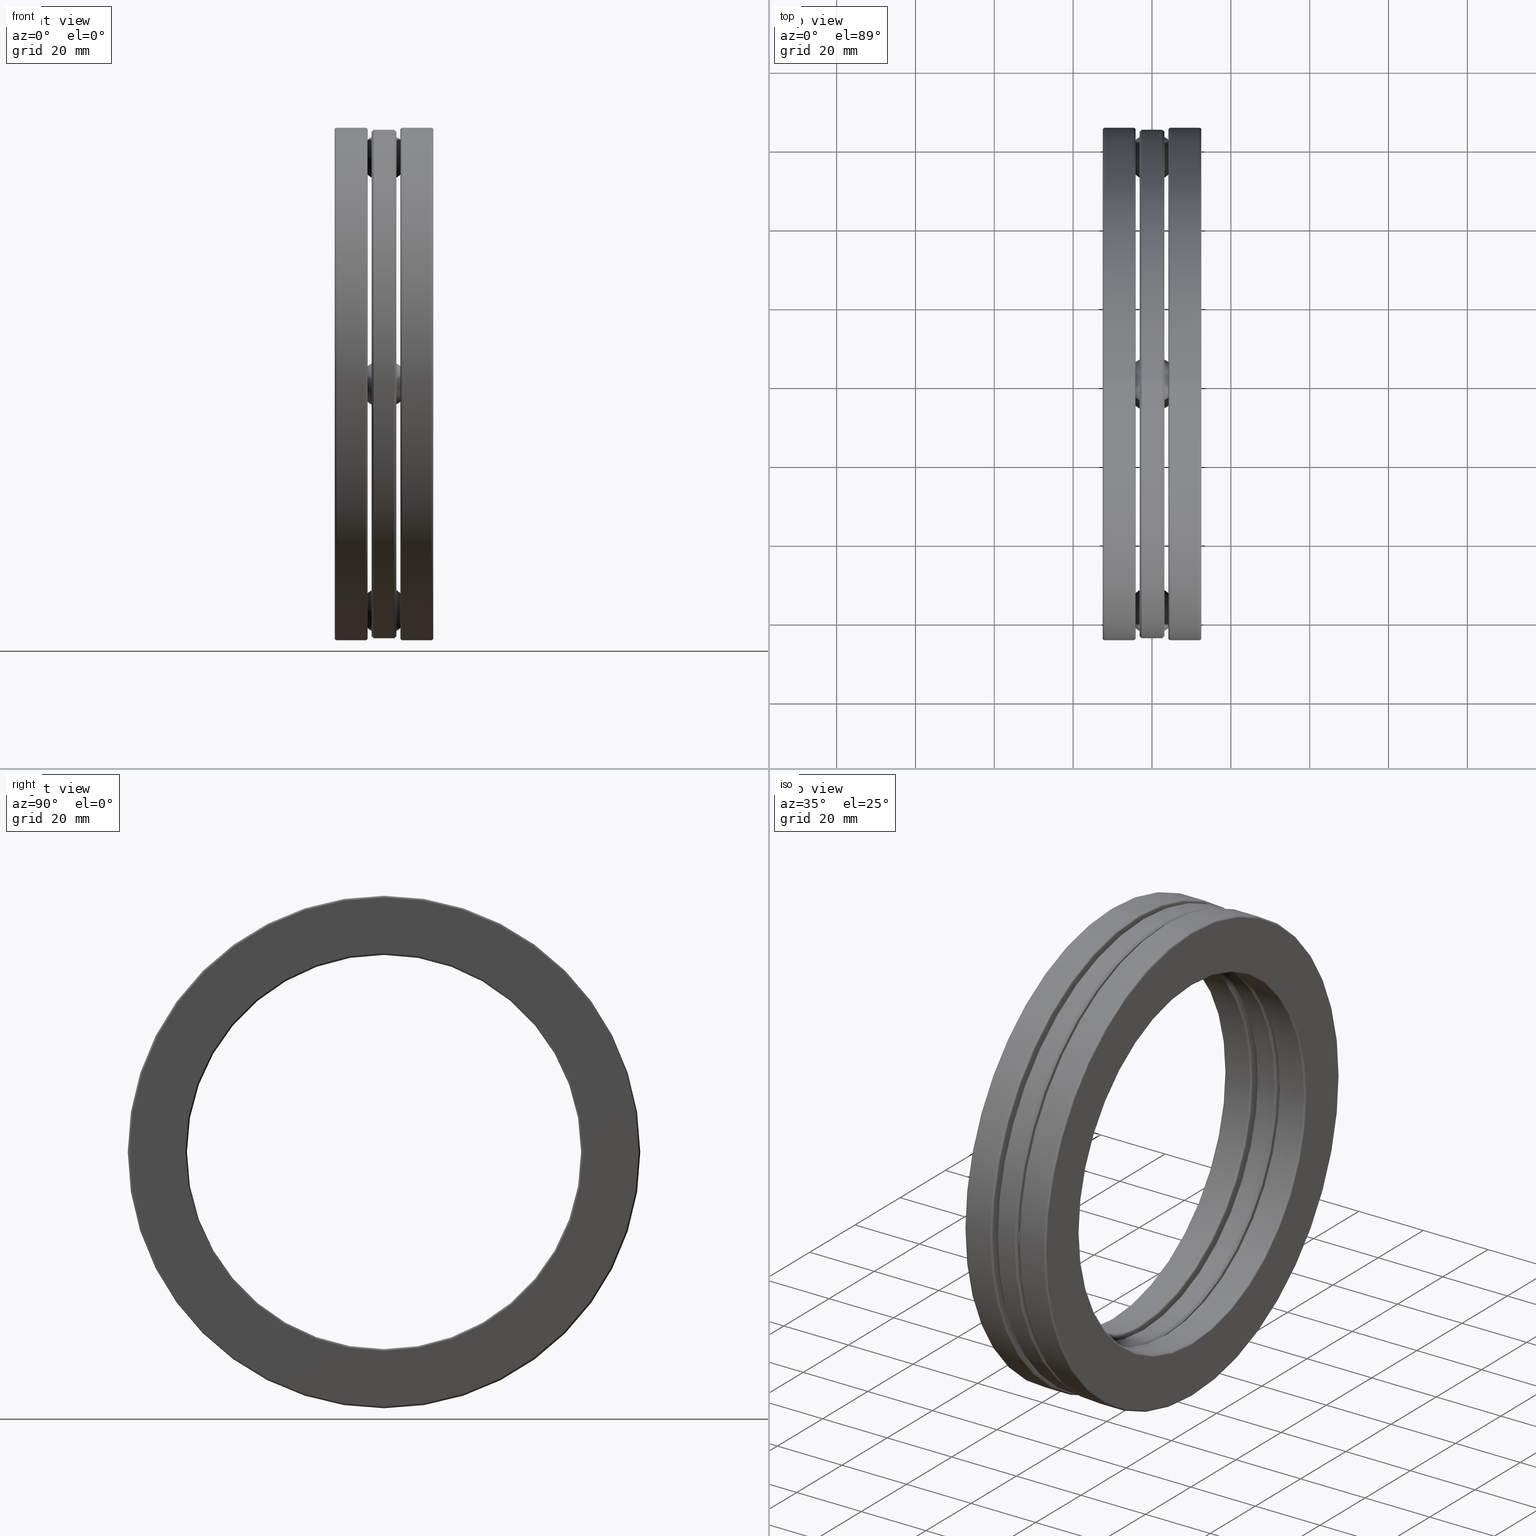
[diagram: canonical four-view strip — front | top / right | iso, engineering-drawing reading convention]
A machine part, canonical four-view strip (front | top / right | iso — engineering-drawing reading convention). The complete STEP part file that produces these views, byte-faithful:
ISO-10303-21;
HEADER;
FILE_DESCRIPTION (( 'STEP AP203' ),
    '1' );
FILE_NAME ('2919-ABB.step',
    '2017-03-07T16:43:12',
    ( '' ),
    ( '' ),
    'SwSTEP 2.0',
    'SolidWorks 2017',
    '' );
FILE_SCHEMA (( 'CONFIG_CONTROL_DESIGN' ));
ENDSEC;

DATA;
#1 = APPLICATION_CONTEXT ( 'configuration controlled 3d designs of mechanical parts and assemblies' ) ;
#2 = CIRCLE ( 'NONE', #18, 0.2470000000000005000 ) ;
#3 = AXIS2_PLACEMENT_3D ( 'NONE', #517, #147, #585 ) ;
#4 =( CONVERSION_BASED_UNIT ( 'INCH', #287 ) LENGTH_UNIT ( ) NAMED_UNIT ( #717 ) );
#5 = ORIENTED_EDGE ( 'NONE', *, *, #406, .F. ) ;
#6 = CARTESIAN_POINT ( 'NONE',  ( -0.1229999999999999600, 2.263749999999999900, -0.2470000000000005000 ) ) ;
#7 = CARTESIAN_POINT ( 'NONE',  ( -0.4719999999999999200, 0.0000000000000000000, 0.0000000000000000000 ) ) ;
#8 = ORIENTED_EDGE ( 'NONE', *, *, #510, .F. ) ;
#9 = ORIENTED_EDGE ( 'NONE', *, *, #482, .T. ) ;
#10 = CC_DESIGN_SECURITY_CLASSIFICATION ( #518, ( #497 ) ) ;
#11 = VERTEX_POINT ( 'NONE', #318 ) ;
#12 = FACE_BOUND ( 'NONE', #197, .T. ) ;
#13 = EDGE_CURVE ( 'NONE', #757, #757, #599, .T. ) ;
#14 = CARTESIAN_POINT ( 'NONE',  ( -0.1840032799999997400, 0.0000000000000000000, 0.0000000000000000000 ) ) ;
#15 = CYLINDRICAL_SURFACE ( 'NONE', #573, 0.2470000000000005000 ) ;
#16 = ORIENTED_EDGE ( 'NONE', *, *, #751, .F. ) ;
#17 = EDGE_LOOP ( 'NONE', ( #686 ) ) ;
#18 = AXIS2_PLACEMENT_3D ( 'NONE', #507, #263, #175 ) ;
#19 = DIRECTION ( 'NONE',  ( 0.0000000000000000000, 0.0000000000000000000, 1.000000000000000000 ) ) ;
#20 = CARTESIAN_POINT ( 'NONE',  ( 0.4720000000000009200, 0.0000000000000000000, 0.0000000000000000000 ) ) ;
#21 = PERSON_AND_ORGANIZATION ( #528, #74 ) ;
#22 = ADVANCED_FACE ( 'NONE', ( #503, #128 ), #781, .T. ) ;
#23 = FACE_OUTER_BOUND ( 'NONE', #567, .T. ) ;
#24 = EDGE_CURVE ( 'NONE', #416, #416, #763, .T. ) ;
#25 = ADVANCED_FACE ( 'NONE', ( #49, #270 ), #439, .F. ) ;
#26 = CARTESIAN_POINT ( 'NONE',  ( 0.1230000000000000000, 2.263749999999999900, 0.0000000000000000000 ) ) ;
#27 = EDGE_LOOP ( 'NONE', ( #594 ) ) ;
#28 = DIRECTION ( 'NONE',  ( 0.0000000000000000000, 0.0000000000000000000, 1.000000000000000000 ) ) ;
#29 = ORIENTED_EDGE ( 'NONE', *, *, #558, .F. ) ;
#30 = ORIENTED_EDGE ( 'NONE', *, *, #418, .F. ) ;
#31 = CARTESIAN_POINT ( 'NONE',  ( -0.4920393700787400500, 2.263749999999999900, 0.0000000000000000000 ) ) ;
#32 = VERTEX_POINT ( 'NONE', #313 ) ;
#33 = DIRECTION ( 'NONE',  ( 0.0000000000000000000, 0.0000000000000000000, -1.000000000000000000 ) ) ;
#34 = FACE_BOUND ( 'NONE', #412, .T. ) ;
#35 = AXIS2_PLACEMENT_3D ( 'NONE', #496, #755, #617 ) ;
#36 = MANIFOLD_SOLID_BREP ( 'CirPattern4[3]', #185 ) ;
#37 = CYLINDRICAL_SURFACE ( 'NONE', #366, 2.539000000000001000 ) ;
#38 = CARTESIAN_POINT ( 'NONE',  ( -0.1229999999999999600, -1.645530378162110900E-017, 0.0000000000000000000 ) ) ;
#39 = ORIENTED_EDGE ( 'NONE', *, *, #669, .T. ) ;
#40 = ORIENTED_EDGE ( 'NONE', *, *, #148, .T. ) ;
#41 = ADVANCED_FACE ( 'NONE', ( #494, #530 ), #454, .F. ) ;
#42 = AXIS2_PLACEMENT_3D ( 'NONE', #664, #737, #171 ) ;
#43 = DIRECTION ( 'NONE',  ( -1.000000000000000000, -0.0000000000000000000, -0.0000000000000000000 ) ) ;
#44 = CALENDAR_DATE ( 2017, 7, 3 ) ;
#45 = VERTEX_POINT ( 'NONE', #736 ) ;
#46 = CARTESIAN_POINT ( 'NONE',  ( 0.4720000000000009200, 0.0000000000000000000, 0.0000000000000000000 ) ) ;
#47 = CARTESIAN_POINT ( 'NONE',  ( 0.1640032800000007800, 0.0000000000000000000, 1.988499999999999900 ) ) ;
#48 = FACE_OUTER_BOUND ( 'NONE', #556, .T. ) ;
#49 = FACE_OUTER_BOUND ( 'NONE', #120, .T. ) ;
#50 = ORIENTED_EDGE ( 'NONE', *, *, #583, .F. ) ;
#51 = DIRECTION ( 'NONE',  ( -1.000000000000000000, -0.0000000000000000000, -0.0000000000000000000 ) ) ;
#52 = DIRECTION ( 'NONE',  ( 0.0000000000000000000, 0.0000000000000000000, 1.000000000000000000 ) ) ;
#53 = AXIS2_PLACEMENT_3D ( 'NONE', #552, #352, #156 ) ;
#54 = DATE_AND_TIME ( #214, #811 ) ;
#55 = TOROIDAL_SURFACE ( 'NONE', #791, 2.539000000000000600, 0.02000000000000016300 ) ;
#56 = DIRECTION ( 'NONE',  ( -1.000000000000000000, -0.0000000000000000000, -0.0000000000000000000 ) ) ;
#57 = EDGE_CURVE ( 'NONE', #381, #381, #739, .T. ) ;
#58 = CARTESIAN_POINT ( 'NONE',  ( 0.1029999999999999400, 0.0000000000000000000, 2.539000000000001000 ) ) ;
#59 = CYLINDRICAL_SURFACE ( 'NONE', #317, 0.2470000000000005000 ) ;
#60 = ORIENTED_EDGE ( 'NONE', *, *, #57, .T. ) ;
#61 = CARTESIAN_POINT ( 'NONE',  ( 0.1230000000000000000, 2.263749999999999900, -0.2470000000000005000 ) ) ;
#62 = COORDINATED_UNIVERSAL_TIME_OFFSET ( 5, 0, .BEHIND. ) ;
#63 = AXIS2_PLACEMENT_3D ( 'NONE', #135, #549, #221 ) ;
#64 = CIRCLE ( 'NONE', #134, 2.539000000000001000 ) ;
#65 = CARTESIAN_POINT ( 'NONE',  ( -0.4919999999999999900, 0.0000000000000000000, 2.539000000000001000 ) ) ;
#66 = CARTESIAN_POINT ( 'NONE',  ( 0.1640032800000007800, 0.0000000000000000000, 2.539000000000001000 ) ) ;
#67 = CIRCLE ( 'NONE', #415, 2.441702027662630200 ) ;
#68 = AXIS2_PLACEMENT_3D ( 'NONE', #130, #254, #312 ) ;
#69 = CARTESIAN_POINT ( 'NONE',  ( -0.1840032799999997400, 0.0000000000000000000, 0.0000000000000000000 ) ) ;
#70 = ORIENTED_EDGE ( 'NONE', *, *, #766, .T. ) ;
#71 = MECHANICAL_CONTEXT ( 'NONE', #373, 'mechanical' ) ;
#72 = ORIENTED_EDGE ( 'NONE', *, *, #219, .F. ) ;
#73 = EDGE_LOOP ( 'NONE', ( #566 ) ) ;
#74 = ORGANIZATION ( 'UNSPECIFIED', 'UNSPECIFIED', '' ) ;
#75 = FACE_OUTER_BOUND ( 'NONE', #77, .T. ) ;
#76 = FACE_BOUND ( 'NONE', #27, .T. ) ;
#77 = EDGE_LOOP ( 'NONE', ( #706 ) ) ;
#78 = CC_DESIGN_PERSON_AND_ORGANIZATION_ASSIGNMENT ( #389, #823, ( #300 ) ) ;
#79 = ORIENTED_EDGE ( 'NONE', *, *, #332, .F. ) ;
#80 = CALENDAR_DATE ( 2017, 7, 3 ) ;
#81 = FACE_OUTER_BOUND ( 'NONE', #505, .T. ) ;
#82 = DIRECTION ( 'NONE',  ( -1.000000000000000000, -0.0000000000000000000, -0.0000000000000000000 ) ) ;
#83 = ADVANCED_FACE ( 'NONE', ( #429, #472 ), #37, .T. ) ;
#84 = CARTESIAN_POINT ( 'NONE',  ( 0.0000000000000000000, 0.0000000000000000000, 0.0000000000000000000 ) ) ;
#85 = FACE_OUTER_BOUND ( 'NONE', #699, .T. ) ;
#86 = ORIENTED_EDGE ( 'NONE', *, *, #275, .F. ) ;
#87 = ADVANCED_FACE ( 'NONE', ( #392, #93 ), #555, .T. ) ;
#88 = DIRECTION ( 'NONE',  ( 0.0000000000000000000, -1.000000000000000000, 3.318034000401932600E-015 ) ) ;
#89 = ADVANCED_FACE ( 'NONE', ( #438, #218 ), #771, .T. ) ;
#90 = DIRECTION ( 'NONE',  ( 0.0000000000000000000, 0.0000000000000000000, 1.000000000000000000 ) ) ;
#91 = AXIS2_PLACEMENT_3D ( 'NONE', #794, #470, #414 ) ;
#92 = DIRECTION ( 'NONE',  ( -1.000000000000000000, -0.0000000000000000000, -0.0000000000000000000 ) ) ;
#93 = FACE_OUTER_BOUND ( 'NONE', #611, .T. ) ;
#94 = ADVANCED_FACE ( 'NONE', ( #750, #348 ), #15, .F. ) ;
#95 = ORIENTED_EDGE ( 'NONE', *, *, #97, .T. ) ;
#96 = ORIENTED_EDGE ( 'NONE', *, *, #810, .T. ) ;
#97 = EDGE_CURVE ( 'NONE', #746, #746, #203, .T. ) ;
#98 = DIRECTION ( 'NONE',  ( 0.0000000000000000000, -1.000000000000000000, 1.047444401652940000E-014 ) ) ;
#99 = ADVANCED_FACE ( 'NONE', ( #635, #398 ), #621, .T. ) ;
#100 = COORDINATED_UNIVERSAL_TIME_OFFSET ( 5, 0, .BEHIND. ) ;
#101 = DIRECTION ( 'NONE',  ( 0.0000000000000000000, 0.0000000000000000000, 1.000000000000000000 ) ) ;
#102 = CONICAL_SURFACE ( 'NONE', #700, 2.519000000000001000, 0.7853981633974431700 ) ;
#103 = PLANE ( 'NONE',  #629 ) ;
#104 = AXIS2_PLACEMENT_3D ( 'NONE', #808, #483, #815 ) ;
#105 = CARTESIAN_POINT ( 'NONE',  ( -0.4919999999999999900, 0.0000000000000000000, 1.988499999999999900 ) ) ;
#106 = EDGE_LOOP ( 'NONE', ( #387 ) ) ;
#107 = EDGE_LOOP ( 'NONE', ( #627 ) ) ;
#108 = EDGE_CURVE ( 'NONE', #45, #45, #658, .T. ) ;
#109 = VERTEX_POINT ( 'NONE', #432 ) ;
#110 = PLANE ( 'NONE',  #251 ) ;
#111 = DIRECTION ( 'NONE',  ( 0.0000000000000000000, 0.0000000000000000000, 1.000000000000000000 ) ) ;
#112 = CARTESIAN_POINT ( 'NONE',  ( -0.1229999999999999600, -2.263749999999999900, 0.0000000000000000000 ) ) ;
#113 = CARTESIAN_POINT ( 'NONE',  ( 1.320820913948449600E-016, -2.263749999999999900, 0.0000000000000000000 ) ) ;
#114 = FACE_OUTER_BOUND ( 'NONE', #584, .T. ) ;
#115 = FACE_OUTER_BOUND ( 'NONE', #674, .T. ) ;
#116 = DIRECTION ( 'NONE',  ( 0.0000000000000000000, 0.0000000000000000000, 1.000000000000000000 ) ) ;
#117 = EDGE_LOOP ( 'NONE', ( #816 ) ) ;
#118 = DIRECTION ( 'NONE',  ( 0.0000000000000000000, 0.0000000000000000000, 1.000000000000000000 ) ) ;
#119 = PLANE ( 'NONE',  #821 ) ;
#120 = EDGE_LOOP ( 'NONE', ( #330 ) ) ;
#121 = AXIS2_PLACEMENT_3D ( 'NONE', #353, #580, #323 ) ;
#122 = CARTESIAN_POINT ( 'NONE',  ( 0.1230000000000000300, 0.0000000000000000000, 2.008500000000000600 ) ) ;
#123 = CIRCLE ( 'NONE', #260, 2.441702027662630700 ) ;
#124 =( NAMED_UNIT ( * ) SI_UNIT ( $, .STERADIAN. ) SOLID_ANGLE_UNIT ( ) );
#125 = AXIS2_PLACEMENT_3D ( 'NONE', #814, #426, #118 ) ;
#126 = CARTESIAN_POINT ( 'NONE',  ( -0.1230000000000000300, 0.0000000000000000000, 2.519000000000001000 ) ) ;
#127 = CIRCLE ( 'NONE', #516, 2.008500000000000600 ) ;
#128 = FACE_OUTER_BOUND ( 'NONE', #742, .T. ) ;
#129 = ORIENTED_EDGE ( 'NONE', *, *, #433, .F. ) ;
#130 = CARTESIAN_POINT ( 'NONE',  ( -0.4919999999999999900, 0.0000000000000000000, 0.0000000000000000000 ) ) ;
#131 = DATE_TIME_ROLE ( 'classification_date' ) ;
#132 = APPROVAL_PERSON_ORGANIZATION ( #460, #259, #186 ) ;
#133 = CARTESIAN_POINT ( 'NONE',  ( -0.1229999999999999600, -0.2470000000000083800, -2.263749999999999500 ) ) ;
#134 = AXIS2_PLACEMENT_3D ( 'NONE', #228, #670, #663 ) ;
#135 = CARTESIAN_POINT ( 'NONE',  ( -0.1840032799999997100, 0.0000000000000000000, 0.0000000000000000000 ) ) ;
#136 = ORIENTED_EDGE ( 'NONE', *, *, #108, .T. ) ;
#137 = ORIENTED_EDGE ( 'NONE', *, *, #13, .F. ) ;
#138 = ORIENTED_EDGE ( 'NONE', *, *, #521, .F. ) ;
#139 = EDGE_CURVE ( 'NONE', #140, #140, #269, .T. ) ;
#140 = VERTEX_POINT ( 'NONE', #294 ) ;
#141 = FACE_OUTER_BOUND ( 'NONE', #331, .T. ) ;
#142 = CIRCLE ( 'NONE', #346, 1.988500000000000400 ) ;
#143 = EDGE_LOOP ( 'NONE', ( #306 ) ) ;
#144 = AXIS2_PLACEMENT_3D ( 'NONE', #26, #335, #786 ) ;
#145 = ADVANCED_FACE ( 'NONE', ( #282, #574 ), #762, .F. ) ;
#146 = VERTEX_POINT ( 'NONE', #377 ) ;
#147 = DIRECTION ( 'NONE',  ( -1.000000000000000000, -0.0000000000000000000, -0.0000000000000000000 ) ) ;
#148 = EDGE_CURVE ( 'NONE', #434, #434, #420, .T. ) ;
#149 = DIRECTION ( 'NONE',  ( 0.0000000000000000000, 0.0000000000000000000, 1.000000000000000000 ) ) ;
#150 = DIRECTION ( 'NONE',  ( 0.0000000000000000000, 0.0000000000000000000, 1.000000000000000000 ) ) ;
#151 = TOROIDAL_SURFACE ( 'NONE', #63, 1.988500000000000400, 0.02000000000000014600 ) ;
#152 = EDGE_LOOP ( 'NONE', ( #351 ) ) ;
#153 = DIRECTION ( 'NONE',  ( 0.0000000000000000000, 0.0000000000000000000, 1.000000000000000000 ) ) ;
#154 = EDGE_LOOP ( 'NONE', ( #326 ) ) ;
#155 = ORIENTED_EDGE ( 'NONE', *, *, #235, .T. ) ;
#156 = DIRECTION ( 'NONE',  ( 0.0000000000000000000, 0.0000000000000000000, 1.000000000000000000 ) ) ;
#157 = DIRECTION ( 'NONE',  ( 0.0000000000000000000, 1.000000000000000000, -9.954102001205798600E-015 ) ) ;
#158 = FACE_OUTER_BOUND ( 'NONE', #795, .T. ) ;
#159 = ADVANCED_BREP_SHAPE_REPRESENTATION ( '2919-ABB', ( #246, #506, #458, #632, #764, #36, #735, #35 ), #340 ) ;
#160 = CARTESIAN_POINT ( 'NONE',  ( -0.1640032799999997500, 0.0000000000000000000, 0.0000000000000000000 ) ) ;
#161 = PRODUCT_DEFINITION ( 'UNKNOWN', '', #497, #671 ) ;
#162 = DIRECTION ( 'NONE',  ( 0.0000000000000000000, 0.0000000000000000000, 1.000000000000000000 ) ) ;
#163 = ADVANCED_FACE ( 'NONE', ( ), #329, .T. ) ;
#164 = DIRECTION ( 'NONE',  ( 1.000000000000000000, 0.0000000000000000000, 0.0000000000000000000 ) ) ;
#165 = DIRECTION ( 'NONE',  ( -1.000000000000000000, -0.0000000000000000000, -0.0000000000000000000 ) ) ;
#166 = CIRCLE ( 'NONE', #310, 2.008500000000000600 ) ;
#167 = CARTESIAN_POINT ( 'NONE',  ( 0.1640032800000007800, 0.0000000000000000000, 0.0000000000000000000 ) ) ;
#168 = EDGE_LOOP ( 'NONE', ( #411 ) ) ;
#169 = EDGE_CURVE ( 'NONE', #198, #198, #685, .T. ) ;
#170 = DIRECTION ( 'NONE',  ( -1.000000000000000000, -0.0000000000000000000, -0.0000000000000000000 ) ) ;
#171 = DIRECTION ( 'NONE',  ( 0.0000000000000000000, 0.0000000000000000000, 1.000000000000000000 ) ) ;
#172 = FACE_BOUND ( 'NONE', #806, .T. ) ;
#173 = DIRECTION ( 'NONE',  ( 0.0000000000000000000, 0.0000000000000000000, 1.000000000000000000 ) ) ;
#174 = CARTESIAN_POINT ( 'NONE',  ( -0.4719999999999999200, 0.0000000000000000000, 1.968500000000000100 ) ) ;
#175 = DIRECTION ( 'NONE',  ( 0.0000000000000000000, 0.0000000000000000000, -1.000000000000000000 ) ) ;
#176 = ORIENTED_EDGE ( 'NONE', *, *, #394, .T. ) ;
#177 = ORIENTED_EDGE ( 'NONE', *, *, #433, .T. ) ;
#178 = AXIS2_PLACEMENT_3D ( 'NONE', #38, #589, #790 ) ;
#179 = CARTESIAN_POINT ( 'NONE',  ( 0.1840032800000007700, 0.0000000000000000000, 0.0000000000000000000 ) ) ;
#180 = DIRECTION ( 'NONE',  ( -0.0000000000000000000, -0.0000000000000000000, -1.000000000000000000 ) ) ;
#181 = VERTEX_POINT ( 'NONE', #562 ) ;
#182 = FACE_OUTER_BOUND ( 'NONE', #772, .T. ) ;
#183 = AXIS2_PLACEMENT_3D ( 'NONE', #522, #461, #88 ) ;
#184 = TOROIDAL_SURFACE ( 'NONE', #42, 2.263749999999999900, 0.2420000000000001900 ) ;
#185 = CLOSED_SHELL ( 'NONE', ( #286 ) ) ;
#186 = APPROVAL_ROLE ( '' ) ;
#187 = ORIENTED_EDGE ( 'NONE', *, *, #688, .F. ) ;
#188 = CARTESIAN_POINT ( 'NONE',  ( -0.1229999999999999600, 0.0000000000000000000, 0.0000000000000000000 ) ) ;
#189 = AXIS2_PLACEMENT_3D ( 'NONE', #362, #208, #274 ) ;
#190 =( NAMED_UNIT ( * ) PLANE_ANGLE_UNIT ( ) SI_UNIT ( $, .RADIAN. ) );
#191 = DATE_AND_TIME ( #691, #665 ) ;
#192 = FACE_BOUND ( 'NONE', #152, .T. ) ;
#193 = PRODUCT_RELATED_PRODUCT_CATEGORY ( 'detail', '', ( #300 ) ) ;
#194 = APPROVAL_STATUS ( 'not_yet_approved' ) ;
#195 = EDGE_CURVE ( 'NONE', #820, #820, #166, .T. ) ;
#196 = ORIENTED_EDGE ( 'NONE', *, *, #457, .T. ) ;
#197 = EDGE_LOOP ( 'NONE', ( #255 ) ) ;
#198 = VERTEX_POINT ( 'NONE', #47 ) ;
#199 = FACE_OUTER_BOUND ( 'NONE', #661, .T. ) ;
#200 = DIRECTION ( 'NONE',  ( 0.0000000000000000000, 0.0000000000000000000, 1.000000000000000000 ) ) ;
#201 = DIRECTION ( 'NONE',  ( -1.000000000000000000, -0.0000000000000000000, -0.0000000000000000000 ) ) ;
#202 = AXIS2_PLACEMENT_3D ( 'NONE', #733, #527, #157 ) ;
#203 = CIRCLE ( 'NONE', #731, 2.539000000000001000 ) ;
#204 = CLOSED_SHELL ( 'NONE', ( #209, #225, #99, #523, #87, #413, #400, #89, #728, #468 ) ) ;
#205 = EDGE_LOOP ( 'NONE', ( #624 ) ) ;
#206 = AXIS2_PLACEMENT_3D ( 'NONE', #602, #812, #748 ) ;
#207 = COORDINATED_UNIVERSAL_TIME_OFFSET ( 5, 0, .BEHIND. ) ;
#208 = DIRECTION ( 'NONE',  ( -1.000000000000000000, -0.0000000000000000000, -0.0000000000000000000 ) ) ;
#209 = ADVANCED_FACE ( 'NONE', ( #242, #582 ), #184, .F. ) ;
#210 = TOROIDAL_SURFACE ( 'NONE', #189, 2.539000000000000600, 0.01999999999999982000 ) ;
#211 = ORIENTED_EDGE ( 'NONE', *, *, #108, .F. ) ;
#212 = EDGE_LOOP ( 'NONE', ( #79 ) ) ;
#213 = CARTESIAN_POINT ( 'NONE',  ( 0.4920000000000002700, 0.0000000000000000000, 0.0000000000000000000 ) ) ;
#214 = CALENDAR_DATE ( 2017, 7, 3 ) ;
#215 = DIRECTION ( 'NONE',  ( 0.0000000000000000000, 0.0000000000000000000, 1.000000000000000000 ) ) ;
#216 = DIRECTION ( 'NONE',  ( -1.000000000000000000, -0.0000000000000000000, -0.0000000000000000000 ) ) ;
#217 = AXIS2_PLACEMENT_3D ( 'NONE', #46, #51, #428 ) ;
#218 = FACE_OUTER_BOUND ( 'NONE', #154, .T. ) ;
#219 = EDGE_CURVE ( 'NONE', #572, #572, #142, .T. ) ;
#220 = ADVANCED_FACE ( 'NONE', ( #509, #293 ), #725, .F. ) ;
#221 = DIRECTION ( 'NONE',  ( 0.0000000000000000000, 0.0000000000000000000, 1.000000000000000000 ) ) ;
#222 = ORIENTED_EDGE ( 'NONE', *, *, #710, .T. ) ;
#223 = ORIENTED_EDGE ( 'NONE', *, *, #688, .T. ) ;
#224 = DIRECTION ( 'NONE',  ( 0.0000000000000000000, 0.0000000000000000000, 1.000000000000000000 ) ) ;
#225 = ADVANCED_FACE ( 'NONE', ( #805, #232 ), #110, .F. ) ;
#226 = DATE_AND_TIME ( #44, #560 ) ;
#227 = FACE_BOUND ( 'NONE', #628, .T. ) ;
#228 = CARTESIAN_POINT ( 'NONE',  ( -0.4919999999999999900, 0.0000000000000000000, 0.0000000000000000000 ) ) ;
#229 = AXIS2_PLACEMENT_3D ( 'NONE', #345, #339, #531 ) ;
#230 = CARTESIAN_POINT ( 'NONE',  ( 0.1230000000000000000, 2.371152264241843100E-014, 2.263749999999999900 ) ) ;
#231 = DIRECTION ( 'NONE',  ( 0.0000000000000000000, 0.0000000000000000000, 1.000000000000000000 ) ) ;
#232 = FACE_OUTER_BOUND ( 'NONE', #636, .T. ) ;
#233 = ORIENTED_EDGE ( 'NONE', *, *, #810, .F. ) ;
#234 = ORIENTED_EDGE ( 'NONE', *, *, #540, .F. ) ;
#235 = EDGE_CURVE ( 'NONE', #720, #720, #314, .T. ) ;
#236 = DIRECTION ( 'NONE',  ( 0.0000000000000000000, 0.0000000000000000000, -1.000000000000000000 ) ) ;
#237 = DIRECTION ( 'NONE',  ( 0.0000000000000000000, 0.0000000000000000000, -1.000000000000000000 ) ) ;
#238 = CARTESIAN_POINT ( 'NONE',  ( 0.1230000000000000300, 0.0000000000000000000, 0.0000000000000000000 ) ) ;
#239 = CYLINDRICAL_SURFACE ( 'NONE', #121, 1.968500000000000100 ) ;
#240 = DIRECTION ( 'NONE',  ( -1.000000000000000000, -0.0000000000000000000, -0.0000000000000000000 ) ) ;
#241 = CARTESIAN_POINT ( 'NONE',  ( 0.1840032800000007700, 0.0000000000000000000, 0.0000000000000000000 ) ) ;
#242 = FACE_OUTER_BOUND ( 'NONE', #576, .T. ) ;
#243 = EDGE_LOOP ( 'NONE', ( #441 ) ) ;
#244 = EDGE_LOOP ( 'NONE', ( #8 ) ) ;
#245 = APPROVAL ( #491, 'UNSPECIFIED' ) ;
#246 = MANIFOLD_SOLID_BREP ( 'Revolve1', #386 ) ;
#247 = CC_DESIGN_APPROVAL ( #379, ( #518 ) ) ;
#248 = VERTEX_POINT ( 'NONE', #493 ) ;
#249 = CIRCLE ( 'NONE', #397, 0.2470000000000005000 ) ;
#250 = APPLICATION_PROTOCOL_DEFINITION ( 'international standard', 'config_control_design', 1994, #1 ) ;
#251 = AXIS2_PLACEMENT_3D ( 'NONE', #368, #819, #301 ) ;
#252 = CARTESIAN_POINT ( 'NONE',  ( -0.1229999999999999600, -2.263749999999999900, 0.2470000000000005000 ) ) ;
#253 = CIRCLE ( 'NONE', #724, 2.539000000000001000 ) ;
#254 = DIRECTION ( 'NONE',  ( -1.000000000000000000, -0.0000000000000000000, -0.0000000000000000000 ) ) ;
#255 = ORIENTED_EDGE ( 'NONE', *, *, #382, .T. ) ;
#256 = CARTESIAN_POINT ( 'NONE',  ( -0.1840032799999997400, 0.0000000000000000000, 2.559000000000000600 ) ) ;
#257 = EDGE_LOOP ( 'NONE', ( #474 ) ) ;
#258 = VERTEX_POINT ( 'NONE', #133 ) ;
#259 = APPROVAL ( #559, 'UNSPECIFIED' ) ;
#260 = AXIS2_PLACEMENT_3D ( 'NONE', #801, #43, #473 ) ;
#261 = CIRCLE ( 'NONE', #289, 2.519000000000001000 ) ;
#262 = ORIENTED_EDGE ( 'NONE', *, *, #24, .T. ) ;
#263 = DIRECTION ( 'NONE',  ( -1.000000000000000000, -0.0000000000000000000, -0.0000000000000000000 ) ) ;
#264 = CLOSED_SHELL ( 'NONE', ( #291 ) ) ;
#265 = AXIS2_PLACEMENT_3D ( 'NONE', #355, #419, #52 ) ;
#266 = APPROVAL_PERSON_ORGANIZATION ( #775, #245, #684 ) ;
#267 = FACE_BOUND ( 'NONE', #519, .T. ) ;
#268 = AXIS2_PLACEMENT_3D ( 'NONE', #653, #657, #631 ) ;
#269 = CIRCLE ( 'NONE', #612, 2.539000000000000600 ) ;
#270 = FACE_OUTER_BOUND ( 'NONE', #143, .T. ) ;
#271 = DIRECTION ( 'NONE',  ( 0.0000000000000000000, 0.0000000000000000000, 1.000000000000000000 ) ) ;
#272 = DIRECTION ( 'NONE',  ( -1.000000000000000000, -0.0000000000000000000, -0.0000000000000000000 ) ) ;
#273 = ORIENTED_EDGE ( 'NONE', *, *, #583, .T. ) ;
#274 = DIRECTION ( 'NONE',  ( 0.0000000000000000000, 0.0000000000000000000, 1.000000000000000000 ) ) ;
#275 = EDGE_CURVE ( 'NONE', #587, #587, #609, .T. ) ;
#276 = ADVANCED_FACE ( 'NONE', ( #696, #115 ), #59, .F. ) ;
#277 = VERTEX_POINT ( 'NONE', #384 ) ;
#278 = DIRECTION ( 'NONE',  ( -1.000000000000000000, -0.0000000000000000000, -0.0000000000000000000 ) ) ;
#279 = CARTESIAN_POINT ( 'NONE',  ( 0.1230000000000000000, -2.263749999999999900, 0.0000000000000000000 ) ) ;
#280 = CIRCLE ( 'NONE', #144, 0.2470000000000005000 ) ;
#281 = DIRECTION ( 'NONE',  ( -1.000000000000000000, -0.0000000000000000000, -0.0000000000000000000 ) ) ;
#282 = FACE_BOUND ( 'NONE', #456, .T. ) ;
#283 = ORIENTED_EDGE ( 'NONE', *, *, #418, .T. ) ;
#284 = EDGE_LOOP ( 'NONE', ( #155 ) ) ;
#285 = DIRECTION ( 'NONE',  ( -1.000000000000000000, -0.0000000000000000000, -0.0000000000000000000 ) ) ;
#286 = ADVANCED_FACE ( 'NONE', ( ), #410, .T. ) ;
#287 = LENGTH_MEASURE_WITH_UNIT ( LENGTH_MEASURE( 0.02539999999999999900 ), #475 );
#288 = CARTESIAN_POINT ( 'NONE',  ( -0.4719999999999999200, 0.0000000000000000000, 0.0000000000000000000 ) ) ;
#289 = AXIS2_PLACEMENT_3D ( 'NONE', #333, #633, #162 ) ;
#290 = SPHERICAL_SURFACE ( 'NONE', #642, 0.2420000000000001900 ) ;
#291 = ADVANCED_FACE ( 'NONE', ( ), #374, .T. ) ;
#292 = DIRECTION ( 'NONE',  ( 0.0000000000000000000, 0.0000000000000000000, 1.000000000000000000 ) ) ;
#293 = FACE_OUTER_BOUND ( 'NONE', #792, .T. ) ;
#294 = CARTESIAN_POINT ( 'NONE',  ( 0.4920000000000002700, 0.0000000000000000000, 2.539000000000000600 ) ) ;
#295 = ORIENTED_EDGE ( 'NONE', *, *, #469, .F. ) ;
#296 = PRODUCT_DEFINITION_SHAPE ( 'NONE', 'NONE',  #161 ) ;
#297 = EDGE_LOOP ( 'NONE', ( #234 ) ) ;
#298 = VERTEX_POINT ( 'NONE', #761 ) ;
#299 = CARTESIAN_POINT ( 'NONE',  ( 0.1229999999999999400, 0.0000000000000000000, 2.519000000000001000 ) ) ;
#300 = PRODUCT ( '2919-ABB', '2919-ABB', '', ( #71 ) ) ;
#301 = DIRECTION ( 'NONE',  ( 0.0000000000000000000, 0.0000000000000000000, -1.000000000000000000 ) ) ;
#302 = CARTESIAN_POINT ( 'NONE',  ( 0.1640032800000007800, 0.0000000000000000000, 0.0000000000000000000 ) ) ;
#303 = EDGE_LOOP ( 'NONE', ( #673 ) ) ;
#304 = AXIS2_PLACEMENT_3D ( 'NONE', #606, #427, #360 ) ;
#305 = CARTESIAN_POINT ( 'NONE',  ( 0.1029999999999999400, 0.0000000000000000000, 0.0000000000000000000 ) ) ;
#306 = ORIENTED_EDGE ( 'NONE', *, *, #669, .F. ) ;
#307 = DIRECTION ( 'NONE',  ( 0.0000000000000000000, 0.0000000000000000000, 1.000000000000000000 ) ) ;
#308 = CARTESIAN_POINT ( 'NONE',  ( 0.1640032800000007800, 0.0000000000000000000, 2.085797972337370100 ) ) ;
#309 = TOROIDAL_SURFACE ( 'NONE', #440, 1.988499999999999900, 0.01999999999999992400 ) ;
#310 = AXIS2_PLACEMENT_3D ( 'NONE', #654, #734, #292 ) ;
#311 = CARTESIAN_POINT ( 'NONE',  ( -0.1029999999999999700, 0.0000000000000000000, 1.988500000000000400 ) ) ;
#312 = DIRECTION ( 'NONE',  ( 0.0000000000000000000, 0.0000000000000000000, 1.000000000000000000 ) ) ;
#313 = CARTESIAN_POINT ( 'NONE',  ( 0.1640032800000007800, 0.0000000000000000000, 2.441702027662630200 ) ) ;
#314 = CIRCLE ( 'NONE', #125, 1.968500000000000100 ) ;
#315 = EDGE_LOOP ( 'NONE', ( #223 ) ) ;
#316 = CARTESIAN_POINT ( 'NONE',  ( 1.320820913948449600E-016, 0.0000000000000000000, 0.0000000000000000000 ) ) ;
#317 = AXIS2_PLACEMENT_3D ( 'NONE', #477, #164, #809 ) ;
#318 = CARTESIAN_POINT ( 'NONE',  ( -0.1840032799999997400, 0.0000000000000000000, 1.968500000000000100 ) ) ;
#319 = CARTESIAN_POINT ( 'NONE',  ( -0.1640032799999997500, 0.0000000000000000000, 0.0000000000000000000 ) ) ;
#320 = DIRECTION ( 'NONE',  ( -1.000000000000000000, -0.0000000000000000000, -0.0000000000000000000 ) ) ;
#321 = VERTEX_POINT ( 'NONE', #256 ) ;
#322 = CARTESIAN_POINT ( 'NONE',  ( -0.1640032799999997500, 0.0000000000000000000, 1.988500000000000400 ) ) ;
#323 = DIRECTION ( 'NONE',  ( 0.0000000000000000000, 0.0000000000000000000, 1.000000000000000000 ) ) ;
#324 = EDGE_CURVE ( 'NONE', #32, #32, #67, .T. ) ;
#325 = CIRCLE ( 'NONE', #707, 2.559000000000000600 ) ;
#326 = ORIENTED_EDGE ( 'NONE', *, *, #797, .T. ) ;
#327 = ORIENTED_EDGE ( 'NONE', *, *, #13, .T. ) ;
#328 = CIRCLE ( 'NONE', #476, 2.085797972337369600 ) ;
#329 = SPHERICAL_SURFACE ( 'NONE', #526, 0.2420000000000001900 ) ;
#330 = ORIENTED_EDGE ( 'NONE', *, *, #540, .T. ) ;
#331 = EDGE_LOOP ( 'NONE', ( #96 ) ) ;
#332 = EDGE_CURVE ( 'NONE', #680, #680, #253, .T. ) ;
#333 = CARTESIAN_POINT ( 'NONE',  ( -0.1230000000000000300, 0.0000000000000000000, 0.0000000000000000000 ) ) ;
#334 = FACE_OUTER_BOUND ( 'NONE', #17, .T. ) ;
#335 = DIRECTION ( 'NONE',  ( 1.000000000000000000, -0.0000000000000000000, 0.0000000000000000000 ) ) ;
#336 = CARTESIAN_POINT ( 'NONE',  ( 0.1029999999999999400, 0.0000000000000000000, 0.0000000000000000000 ) ) ;
#337 = EDGE_LOOP ( 'NONE', ( #177 ) ) ;
#338 = ORIENTED_EDGE ( 'NONE', *, *, #457, .F. ) ;
#339 = DIRECTION ( 'NONE',  ( -1.000000000000000000, -0.0000000000000000000, -0.0000000000000000000 ) ) ;
#340 =( GEOMETRIC_REPRESENTATION_CONTEXT ( 3 ) GLOBAL_UNCERTAINTY_ASSIGNED_CONTEXT ( ( #514 ) ) GLOBAL_UNIT_ASSIGNED_CONTEXT ( ( #4, #190, #124 ) ) REPRESENTATION_CONTEXT ( 'NONE', 'WORKASPACE' ) );
#341 = VERTEX_POINT ( 'NONE', #693 ) ;
#342 = CYLINDRICAL_SURFACE ( 'NONE', #202, 0.2470000000000005000 ) ;
#343 = ADVANCED_FACE ( 'NONE', ( #780, #85 ), #542, .T. ) ;
#344 = CARTESIAN_POINT ( 'NONE',  ( -0.1229999999999999600, 2.371152264241843100E-014, 2.263749999999999900 ) ) ;
#345 = CARTESIAN_POINT ( 'NONE',  ( 0.0000000000000000000, 0.0000000000000000000, 0.0000000000000000000 ) ) ;
#346 = AXIS2_PLACEMENT_3D ( 'NONE', #743, #240, #547 ) ;
#347 = DIRECTION ( 'NONE',  ( 0.0000000000000000000, 0.0000000000000000000, 1.000000000000000000 ) ) ;
#348 = FACE_OUTER_BOUND ( 'NONE', #421, .T. ) ;
#349 = ADVANCED_FACE ( 'NONE', ( #591, #385 ), #712, .F. ) ;
#350 = EDGE_LOOP ( 'NONE', ( #262 ) ) ;
#351 = ORIENTED_EDGE ( 'NONE', *, *, #710, .F. ) ;
#352 = DIRECTION ( 'NONE',  ( -1.000000000000000000, -0.0000000000000000000, -0.0000000000000000000 ) ) ;
#353 = CARTESIAN_POINT ( 'NONE',  ( 0.0000000000000000000, 0.0000000000000000000, 0.0000000000000000000 ) ) ;
#354 = APPROVAL_PERSON_ORGANIZATION ( #21, #379, #569 ) ;
#355 = CARTESIAN_POINT ( 'NONE',  ( 0.1640032800000007800, 0.0000000000000000000, 0.0000000000000000000 ) ) ;
#356 = AXIS2_PLACEMENT_3D ( 'NONE', #537, #216, #224 ) ;
#357 = FACE_BOUND ( 'NONE', #378, .T. ) ;
#358 = FACE_OUTER_BOUND ( 'NONE', #361, .T. ) ;
#359 = AXIS2_PLACEMENT_3D ( 'NONE', #188, #487, #116 ) ;
#360 = DIRECTION ( 'NONE',  ( 0.0000000000000000000, -1.000000000000000000, 3.318034000401932600E-015 ) ) ;
#361 = EDGE_LOOP ( 'NONE', ( #577 ) ) ;
#362 = CARTESIAN_POINT ( 'NONE',  ( 0.4720000000000009200, 0.0000000000000000000, 0.0000000000000000000 ) ) ;
#363 = ORIENTED_EDGE ( 'NONE', *, *, #394, .F. ) ;
#364 = ORIENTED_EDGE ( 'NONE', *, *, #558, .T. ) ;
#365 = DIRECTION ( 'NONE',  ( -1.000000000000000000, -0.0000000000000000000, -0.0000000000000000000 ) ) ;
#366 = AXIS2_PLACEMENT_3D ( 'NONE', #553, #626, #502 ) ;
#367 = VERTEX_POINT ( 'NONE', #122 ) ;
#368 = CARTESIAN_POINT ( 'NONE',  ( 0.1640032800000007800, 0.0000000000000000000, 0.0000000000000000000 ) ) ;
#369 = CIRCLE ( 'NONE', #593, 2.539000000000000600 ) ;
#370 = DIRECTION ( 'NONE',  ( -1.000000000000000000, 0.0000000000000000000, 0.0000000000000000000 ) ) ;
#371 = PLANE ( 'NONE',  #533 ) ;
#372 = CC_DESIGN_PERSON_AND_ORGANIZATION_ASSIGNMENT ( #524, #564, ( #161 ) ) ;
#373 = APPLICATION_CONTEXT ( 'configuration controlled 3d designs of mechanical parts and assemblies' ) ;
#374 = SPHERICAL_SURFACE ( 'NONE', #682, 0.2420000000000001900 ) ;
#375 = ORIENTED_EDGE ( 'NONE', *, *, #195, .F. ) ;
#376 = AXIS2_PLACEMENT_3D ( 'NONE', #230, #738, #539 ) ;
#377 = CARTESIAN_POINT ( 'NONE',  ( -0.4719999999999999200, 0.0000000000000000000, 2.559000000000000600 ) ) ;
#378 = EDGE_LOOP ( 'NONE', ( #698 ) ) ;
#379 = APPROVAL ( #194, 'UNSPECIFIED' ) ;
#380 = LOCAL_TIME ( 11, 43, 12.00000000000000000, #62 ) ;
#381 = VERTEX_POINT ( 'NONE', #299 ) ;
#382 = EDGE_CURVE ( 'NONE', #367, #367, #127, .T. ) ;
#383 = CARTESIAN_POINT ( 'NONE',  ( 0.1230000000000000000, 0.2470000000000242000, 2.263749999999997700 ) ) ;
#384 = CARTESIAN_POINT ( 'NONE',  ( 0.1030000000000000400, 0.0000000000000000000, 1.988500000000000400 ) ) ;
#385 = FACE_OUTER_BOUND ( 'NONE', #303, .T. ) ;
#386 = CLOSED_SHELL ( 'NONE', ( #25, #639, #22, #343, #655, #586, #529, #220, #408, #793 ) ) ;
#387 = ORIENTED_EDGE ( 'NONE', *, *, #766, .F. ) ;
#388 = ORIENTED_EDGE ( 'NONE', *, *, #97, .F. ) ;
#389 = PERSON_AND_ORGANIZATION ( #528, #74 ) ;
#390 = CIRCLE ( 'NONE', #104, 2.539000000000001000 ) ;
#391 = AXIS2_PLACEMENT_3D ( 'NONE', #662, #98, #471 ) ;
#392 = FACE_OUTER_BOUND ( 'NONE', #430, .T. ) ;
#393 = EDGE_LOOP ( 'NONE', ( #754 ) ) ;
#394 = EDGE_CURVE ( 'NONE', #403, #403, #2, .T. ) ;
#395 = CALENDAR_DATE ( 2017, 7, 3 ) ;
#396 = FACE_BOUND ( 'NONE', #622, .T. ) ;
#397 = AXIS2_PLACEMENT_3D ( 'NONE', #279, #543, #111 ) ;
#398 = FACE_OUTER_BOUND ( 'NONE', #117, .T. ) ;
#399 = DIRECTION ( 'NONE',  ( -1.000000000000000000, -0.0000000000000000000, -0.0000000000000000000 ) ) ;
#400 = ADVANCED_FACE ( 'NONE', ( #565, #447 ), #210, .T. ) ;
#401 = ORIENTED_EDGE ( 'NONE', *, *, #778, .F. ) ;
#402 = AXIS2_PLACEMENT_3D ( 'NONE', #697, #571, #568 ) ;
#403 = VERTEX_POINT ( 'NONE', #6 ) ;
#404 = CARTESIAN_POINT ( 'NONE',  ( -0.1640032799999997500, 0.0000000000000000000, 0.0000000000000000000 ) ) ;
#405 = FACE_OUTER_BOUND ( 'NONE', #465, .T. ) ;
#406 = EDGE_CURVE ( 'NONE', #489, #489, #590, .T. ) ;
#407 = DIRECTION ( 'NONE',  ( 1.000000000000000000, 0.0000000000000000000, 0.0000000000000000000 ) ) ;
#408 = ADVANCED_FACE ( 'NONE', ( #705, #48 ), #151, .T. ) ;
#409 = FACE_OUTER_BOUND ( 'NONE', #284, .T. ) ;
#410 = SPHERICAL_SURFACE ( 'NONE', #391, 0.2420000000000001900 ) ;
#411 = ORIENTED_EDGE ( 'NONE', *, *, #169, .F. ) ;
#412 = EDGE_LOOP ( 'NONE', ( #211 ) ) ;
#413 = ADVANCED_FACE ( 'NONE', ( #672, #358 ), #423, .T. ) ;
#414 = DIRECTION ( 'NONE',  ( 0.0000000000000000000, 0.0000000000000000000, -1.000000000000000000 ) ) ;
#415 = AXIS2_PLACEMENT_3D ( 'NONE', #167, #598, #459 ) ;
#416 = VERTEX_POINT ( 'NONE', #174 ) ;
#417 = DIRECTION ( 'NONE',  ( 0.0000000000000000000, 0.0000000000000000000, 1.000000000000000000 ) ) ;
#418 = EDGE_CURVE ( 'NONE', #341, #341, #446, .T. ) ;
#419 = DIRECTION ( 'NONE',  ( -1.000000000000000000, -0.0000000000000000000, -0.0000000000000000000 ) ) ;
#420 = CIRCLE ( 'NONE', #486, 2.559000000000000600 ) ;
#421 = EDGE_LOOP ( 'NONE', ( #222 ) ) ;
#422 = CARTESIAN_POINT ( 'NONE',  ( -0.1030000000000000400, 0.0000000000000000000, 2.539000000000001000 ) ) ;
#423 = PLANE ( 'NONE',  #268 ) ;
#424 = DIRECTION ( 'NONE',  ( 0.0000000000000000000, 0.0000000000000000000, 1.000000000000000000 ) ) ;
#425 = VERTEX_POINT ( 'NONE', #61 ) ;
#426 = DIRECTION ( 'NONE',  ( -1.000000000000000000, -0.0000000000000000000, -0.0000000000000000000 ) ) ;
#427 = DIRECTION ( 'NONE',  ( -1.000000000000000000, -0.0000000000000000000, -0.0000000000000000000 ) ) ;
#428 = DIRECTION ( 'NONE',  ( 0.0000000000000000000, 0.0000000000000000000, 1.000000000000000000 ) ) ;
#429 = FACE_OUTER_BOUND ( 'NONE', #257, .T. ) ;
#430 = EDGE_LOOP ( 'NONE', ( #295 ) ) ;
#431 = ORIENTED_EDGE ( 'NONE', *, *, #751, .T. ) ;
#432 = CARTESIAN_POINT ( 'NONE',  ( -0.1640032799999997500, 0.0000000000000000000, 2.441702027662630700 ) ) ;
#433 = EDGE_CURVE ( 'NONE', #425, #425, #280, .T. ) ;
#434 = VERTEX_POINT ( 'NONE', #740 ) ;
#435 = FACE_OUTER_BOUND ( 'NONE', #716, .T. ) ;
#436 = DATE_TIME_ROLE ( 'creation_date' ) ;
#437 = PERSON_AND_ORGANIZATION_ROLE ( 'classification_officer' ) ;
#438 = FACE_OUTER_BOUND ( 'NONE', #243, .T. ) ;
#439 = TOROIDAL_SURFACE ( 'NONE', #498, 2.263749999999999900, 0.2420000000000000200 ) ;
#440 = AXIS2_PLACEMENT_3D ( 'NONE', #288, #641, #719 ) ;
#441 = ORIENTED_EDGE ( 'NONE', *, *, #148, .F. ) ;
#442 = DIRECTION ( 'NONE',  ( -1.000000000000000000, -0.0000000000000000000, -0.0000000000000000000 ) ) ;
#443 = CC_DESIGN_PERSON_AND_ORGANIZATION_ASSIGNMENT ( #499, #501, ( #497 ) ) ;
#444 = VERTEX_POINT ( 'NONE', #126 ) ;
#445 = AXIS2_PLACEMENT_3D ( 'NONE', #783, #278, #462 ) ;
#446 = CIRCLE ( 'NONE', #619, 1.968500000000000100 ) ;
#447 = FACE_OUTER_BOUND ( 'NONE', #713, .T. ) ;
#448 = AXIS2_PLACEMENT_3D ( 'NONE', #238, #676, #679 ) ;
#449 = ORIENTED_EDGE ( 'NONE', *, *, #139, .T. ) ;
#450 = VERTEX_POINT ( 'NONE', #65 ) ;
#451 = CIRCLE ( 'NONE', #774, 2.085797972337370100 ) ;
#452 = AXIS2_PLACEMENT_3D ( 'NONE', #603, #541, #237 ) ;
#453 = DIRECTION ( 'NONE',  ( -1.000000000000000000, -0.0000000000000000000, -0.0000000000000000000 ) ) ;
#454 = CONICAL_SURFACE ( 'NONE', #359, 2.008500000000000600, 0.7853981633974500600 ) ;
#455 = ORIENTED_EDGE ( 'NONE', *, *, #195, .T. ) ;
#456 = EDGE_LOOP ( 'NONE', ( #273 ) ) ;
#457 = EDGE_CURVE ( 'NONE', #11, #11, #607, .T. ) ;
#458 = MANIFOLD_SOLID_BREP ( 'Revolve4', #726 ) ;
#459 = DIRECTION ( 'NONE',  ( 0.0000000000000000000, 0.0000000000000000000, 1.000000000000000000 ) ) ;
#460 = PERSON_AND_ORGANIZATION ( #528, #74 ) ;
#461 = DIRECTION ( 'NONE',  ( 1.000000000000000000, 0.0000000000000000000, 0.0000000000000000000 ) ) ;
#462 = DIRECTION ( 'NONE',  ( 0.0000000000000000000, 0.0000000000000000000, 1.000000000000000000 ) ) ;
#463 = DIRECTION ( 'NONE',  ( 0.0000000000000000000, 0.0000000000000000000, -1.000000000000000000 ) ) ;
#464 = ORIENTED_EDGE ( 'NONE', *, *, #324, .T. ) ;
#465 = EDGE_LOOP ( 'NONE', ( #29 ) ) ;
#466 = CC_DESIGN_PERSON_AND_ORGANIZATION_ASSIGNMENT ( #536, #437, ( #518 ) ) ;
#467 = CIRCLE ( 'NONE', #304, 0.2470000000000005000 ) ;
#468 = ADVANCED_FACE ( 'NONE', ( #76, #114 ), #371, .F. ) ;
#469 = EDGE_CURVE ( 'NONE', #604, #604, #770, .T. ) ;
#470 = DIRECTION ( 'NONE',  ( 1.000000000000000000, 0.0000000000000000000, 0.0000000000000000000 ) ) ;
#471 = DIRECTION ( 'NONE',  ( -1.000000000000000000, 0.0000000000000000000, 0.0000000000000000000 ) ) ;
#472 = FACE_OUTER_BOUND ( 'NONE', #485, .T. ) ;
#473 = DIRECTION ( 'NONE',  ( 0.0000000000000000000, 0.0000000000000000000, 1.000000000000000000 ) ) ;
#474 = ORIENTED_EDGE ( 'NONE', *, *, #332, .T. ) ;
#475 =( LENGTH_UNIT ( ) NAMED_UNIT ( * ) SI_UNIT ( $, .METRE. ) );
#476 = AXIS2_PLACEMENT_3D ( 'NONE', #404, #285, #347 ) ;
#477 = CARTESIAN_POINT ( 'NONE',  ( -0.4920393700787400500, -7.903840880806144200E-015, -2.263749999999999900 ) ) ;
#478 = VERTEX_POINT ( 'NONE', #753 ) ;
#479 = CC_DESIGN_DATE_AND_TIME_ASSIGNMENT ( #513, #131, ( #518 ) ) ;
#480 = DIRECTION ( 'NONE',  ( 1.000000000000000000, 0.0000000000000000000, 0.0000000000000000000 ) ) ;
#481 = CC_DESIGN_PERSON_AND_ORGANIZATION_ASSIGNMENT ( #708, #620, ( #497 ) ) ;
#482 = EDGE_CURVE ( 'NONE', #444, #444, #261, .T. ) ;
#483 = DIRECTION ( 'NONE',  ( -1.000000000000000000, -0.0000000000000000000, -0.0000000000000000000 ) ) ;
#484 = EDGE_LOOP ( 'NONE', ( #86 ) ) ;
#485 = EDGE_LOOP ( 'NONE', ( #388 ) ) ;
#486 = AXIS2_PLACEMENT_3D ( 'NONE', #241, #165, #101 ) ;
#487 = DIRECTION ( 'NONE',  ( -1.000000000000000000, -0.0000000000000000000, -0.0000000000000000000 ) ) ;
#488 = DIRECTION ( 'NONE',  ( 0.0000000000000000000, 0.0000000000000000000, 1.000000000000000000 ) ) ;
#489 = VERTEX_POINT ( 'NONE', #322 ) ;
#490 = FACE_BOUND ( 'NONE', #643, .T. ) ;
#491 = APPROVAL_STATUS ( 'not_yet_approved' ) ;
#492 = CC_DESIGN_APPROVAL ( #245, ( #161 ) ) ;
#493 = CARTESIAN_POINT ( 'NONE',  ( 0.4720000000000009200, 0.0000000000000000000, 2.559000000000000600 ) ) ;
#494 = FACE_BOUND ( 'NONE', #796, .T. ) ;
#495 = EDGE_LOOP ( 'NONE', ( #375 ) ) ;
#496 = CARTESIAN_POINT ( 'NONE',  ( 0.0000000000000000000, 0.0000000000000000000, 0.0000000000000000000 ) ) ;
#497 = PRODUCT_DEFINITION_FORMATION_WITH_SPECIFIED_SOURCE ( 'ANY', '', #300, .NOT_KNOWN. ) ;
#498 = AXIS2_PLACEMENT_3D ( 'NONE', #316, #320, #767 ) ;
#499 = PERSON_AND_ORGANIZATION ( #528, #74 ) ;
#500 = FACE_BOUND ( 'NONE', #484, .T. ) ;
#501 = PERSON_AND_ORGANIZATION_ROLE ( 'creator' ) ;
#502 = DIRECTION ( 'NONE',  ( 0.0000000000000000000, 0.0000000000000000000, 1.000000000000000000 ) ) ;
#503 = FACE_OUTER_BOUND ( 'NONE', #244, .T. ) ;
#504 = ORIENTED_EDGE ( 'NONE', *, *, #778, .T. ) ;
#505 = EDGE_LOOP ( 'NONE', ( #9 ) ) ;
#506 = MANIFOLD_SOLID_BREP ( 'Revolve3', #204 ) ;
#507 = CARTESIAN_POINT ( 'NONE',  ( -0.1229999999999999600, 2.263749999999999900, 0.0000000000000000000 ) ) ;
#508 = FACE_BOUND ( 'NONE', #512, .T. ) ;
#509 = FACE_OUTER_BOUND ( 'NONE', #350, .T. ) ;
#510 = EDGE_CURVE ( 'NONE', #321, #321, #325, .T. ) ;
#511 = DIRECTION ( 'NONE',  ( -1.000000000000000000, -0.0000000000000000000, -0.0000000000000000000 ) ) ;
#512 = EDGE_LOOP ( 'NONE', ( #137 ) ) ;
#513 = DATE_AND_TIME ( #395, #380 ) ;
#514 = UNCERTAINTY_MEASURE_WITH_UNIT (LENGTH_MEASURE( 1.000000000000000100E-005 ), #4, 'distance_accuracy_value', 'NONE');
#515 = CIRCLE ( 'NONE', #759, 0.2470000000000005000 ) ;
#516 = AXIS2_PLACEMENT_3D ( 'NONE', #701, #646, #90 ) ;
#517 = CARTESIAN_POINT ( 'NONE',  ( 0.1840032800000007700, 0.0000000000000000000, 0.0000000000000000000 ) ) ;
#518 = SECURITY_CLASSIFICATION ( '', '', #768 ) ;
#519 = EDGE_LOOP ( 'NONE', ( #715 ) ) ;
#520 = EDGE_LOOP ( 'NONE', ( #40 ) ) ;
#521 = EDGE_CURVE ( 'NONE', #146, #146, #544, .T. ) ;
#522 = CARTESIAN_POINT ( 'NONE',  ( 0.1230000000000000000, -7.903840880806144200E-015, -2.263749999999999900 ) ) ;
#523 = ADVANCED_FACE ( 'NONE', ( #409, #561 ), #239, .F. ) ;
#524 = PERSON_AND_ORGANIZATION ( #528, #74 ) ;
#525 = FACE_BOUND ( 'NONE', #817, .T. ) ;
#526 = AXIS2_PLACEMENT_3D ( 'NONE', #113, #180, #532 ) ;
#527 = DIRECTION ( 'NONE',  ( 1.000000000000000000, 0.0000000000000000000, 0.0000000000000000000 ) ) ;
#528 = PERSON ( 'UNSPECIFIED', 'UNSPECIFIED', 'UNSPECIFIED', ('UNSPECIFIED'), ('UNSPECIFIED'), ('UNSPECIFIED') ) ;
#529 = ADVANCED_FACE ( 'NONE', ( #23, #550 ), #309, .T. ) ;
#530 = FACE_OUTER_BOUND ( 'NONE', #677, .T. ) ;
#531 = DIRECTION ( 'NONE',  ( 0.0000000000000000000, 0.0000000000000000000, 1.000000000000000000 ) ) ;
#532 = DIRECTION ( 'NONE',  ( -1.000000000000000000, 0.0000000000000000000, 0.0000000000000000000 ) ) ;
#533 = AXIS2_PLACEMENT_3D ( 'NONE', #668, #683, #575 ) ;
#534 = ADVANCED_FACE ( 'NONE', ( #396, #192, #667, #525, #709, #81 ), #723, .F. ) ;
#535 = DIRECTION ( 'NONE',  ( 0.0000000000000000000, 1.000000000000000000, -3.491481338843133400E-015 ) ) ;
#536 = PERSON_AND_ORGANIZATION ( #528, #74 ) ;
#537 = CARTESIAN_POINT ( 'NONE',  ( 0.1030000000000000400, 0.0000000000000000000, 0.0000000000000000000 ) ) ;
#538 = FACE_OUTER_BOUND ( 'NONE', #205, .T. ) ;
#539 = DIRECTION ( 'NONE',  ( 0.0000000000000000000, 1.000000000000000000, -9.954102001205798600E-015 ) ) ;
#540 = EDGE_CURVE ( 'NONE', #181, #181, #328, .T. ) ;
#541 = DIRECTION ( 'NONE',  ( 1.000000000000000000, 0.0000000000000000000, 0.0000000000000000000 ) ) ;
#542 = CYLINDRICAL_SURFACE ( 'NONE', #570, 2.559000000000000600 ) ;
#543 = DIRECTION ( 'NONE',  ( 1.000000000000000000, 0.0000000000000000000, 0.0000000000000000000 ) ) ;
#544 = CIRCLE ( 'NONE', #784, 2.559000000000000600 ) ;
#545 = EDGE_LOOP ( 'NONE', ( #557 ) ) ;
#546 = ORIENTED_EDGE ( 'NONE', *, *, #647, .F. ) ;
#547 = DIRECTION ( 'NONE',  ( 0.0000000000000000000, 0.0000000000000000000, 1.000000000000000000 ) ) ;
#548 = DIRECTION ( 'NONE',  ( 0.0000000000000000000, 0.0000000000000000000, 1.000000000000000000 ) ) ;
#549 = DIRECTION ( 'NONE',  ( -1.000000000000000000, -0.0000000000000000000, -0.0000000000000000000 ) ) ;
#550 = FACE_OUTER_BOUND ( 'NONE', #545, .T. ) ;
#551 = CARTESIAN_POINT ( 'NONE',  ( 1.320820913948449600E-016, 2.263749999999999900, 0.0000000000000000000 ) ) ;
#552 = CARTESIAN_POINT ( 'NONE',  ( 0.4920000000000002700, 0.0000000000000000000, 0.0000000000000000000 ) ) ;
#553 = CARTESIAN_POINT ( 'NONE',  ( 0.0000000000000000000, 0.0000000000000000000, 0.0000000000000000000 ) ) ;
#554 = DIRECTION ( 'NONE',  ( 1.000000000000000000, 0.0000000000000000000, 0.0000000000000000000 ) ) ;
#555 = TOROIDAL_SURFACE ( 'NONE', #634, 1.988500000000000200, 0.01999999999999968500 ) ;
#556 = EDGE_LOOP ( 'NONE', ( #196 ) ) ;
#557 = ORIENTED_EDGE ( 'NONE', *, *, #24, .F. ) ;
#558 = EDGE_CURVE ( 'NONE', #298, #298, #369, .T. ) ;
#559 = APPROVAL_STATUS ( 'not_yet_approved' ) ;
#560 = LOCAL_TIME ( 11, 43, 12.00000000000000000, #785 ) ;
#561 = FACE_OUTER_BOUND ( 'NONE', #752, .T. ) ;
#562 = CARTESIAN_POINT ( 'NONE',  ( -0.1640032799999997500, 0.0000000000000000000, 2.085797972337369600 ) ) ;
#563 = AXIS2_PLACEMENT_3D ( 'NONE', #31, #659, #463 ) ;
#564 = PERSON_AND_ORGANIZATION_ROLE ( 'creator' ) ;
#565 = FACE_OUTER_BOUND ( 'NONE', #73, .T. ) ;
#566 = ORIENTED_EDGE ( 'NONE', *, *, #797, .F. ) ;
#567 = EDGE_LOOP ( 'NONE', ( #327 ) ) ;
#568 = DIRECTION ( 'NONE',  ( 0.0000000000000000000, 0.0000000000000000000, 1.000000000000000000 ) ) ;
#569 = APPROVAL_ROLE ( '' ) ;
#570 = AXIS2_PLACEMENT_3D ( 'NONE', #84, #787, #19 ) ;
#571 = DIRECTION ( 'NONE',  ( -1.000000000000000000, -0.0000000000000000000, -0.0000000000000000000 ) ) ;
#572 = VERTEX_POINT ( 'NONE', #311 ) ;
#573 = AXIS2_PLACEMENT_3D ( 'NONE', #789, #714, #149 ) ;
#574 = FACE_OUTER_BOUND ( 'NONE', #393, .T. ) ;
#575 = DIRECTION ( 'NONE',  ( 0.0000000000000000000, 0.0000000000000000000, -1.000000000000000000 ) ) ;
#576 = EDGE_LOOP ( 'NONE', ( #464 ) ) ;
#577 = ORIENTED_EDGE ( 'NONE', *, *, #139, .F. ) ;
#578 = LOCAL_TIME ( 11, 43, 12.00000000000000000, #756 ) ;
#579 = CONICAL_SURFACE ( 'NONE', #605, 2.539000000000001000, 0.7853981633974427300 ) ;
#580 = DIRECTION ( 'NONE',  ( -1.000000000000000000, -0.0000000000000000000, -0.0000000000000000000 ) ) ;
#581 = ADVANCED_FACE ( 'NONE', ( #651, #199 ), #822, .F. ) ;
#582 = FACE_OUTER_BOUND ( 'NONE', #765, .T. ) ;
#583 = EDGE_CURVE ( 'NONE', #277, #277, #681, .T. ) ;
#584 = EDGE_LOOP ( 'NONE', ( #70 ) ) ;
#585 = DIRECTION ( 'NONE',  ( 0.0000000000000000000, 0.0000000000000000000, 1.000000000000000000 ) ) ;
#586 = ADVANCED_FACE ( 'NONE', ( #508, #141 ), #645, .F. ) ;
#587 = VERTEX_POINT ( 'NONE', #383 ) ;
#588 = CARTESIAN_POINT ( 'NONE',  ( 0.4720000000000009200, 0.0000000000000000000, 0.0000000000000000000 ) ) ;
#589 = DIRECTION ( 'NONE',  ( 1.000000000000000000, 0.0000000000000000000, 0.0000000000000000000 ) ) ;
#590 = CIRCLE ( 'NONE', #804, 1.988500000000000400 ) ;
#591 = FACE_OUTER_BOUND ( 'NONE', #644, .T. ) ;
#592 = ORIENTED_EDGE ( 'NONE', *, *, #469, .T. ) ;
#593 = AXIS2_PLACEMENT_3D ( 'NONE', #597, #722, #650 ) ;
#594 = ORIENTED_EDGE ( 'NONE', *, *, #324, .F. ) ;
#595 = FACE_BOUND ( 'NONE', #687, .T. ) ;
#596 = AXIS2_PLACEMENT_3D ( 'NONE', #758, #614, #689 ) ;
#597 = CARTESIAN_POINT ( 'NONE',  ( -0.1640032799999997500, 0.0000000000000000000, 0.0000000000000000000 ) ) ;
#598 = DIRECTION ( 'NONE',  ( -1.000000000000000000, -0.0000000000000000000, -0.0000000000000000000 ) ) ;
#599 = CIRCLE ( 'NONE', #68, 1.988499999999999900 ) ;
#600 = EDGE_LOOP ( 'NONE', ( #546 ) ) ;
#601 = AXIS2_PLACEMENT_3D ( 'NONE', #344, #92, #729 ) ;
#602 = CARTESIAN_POINT ( 'NONE',  ( 0.0000000000000000000, 0.0000000000000000000, 0.0000000000000000000 ) ) ;
#603 = CARTESIAN_POINT ( 'NONE',  ( 0.1230000000000000000, 2.056912972702650500E-017, 0.0000000000000000000 ) ) ;
#604 = VERTEX_POINT ( 'NONE', #613 ) ;
#605 = AXIS2_PLACEMENT_3D ( 'NONE', #305, #56, #548 ) ;
#606 = CARTESIAN_POINT ( 'NONE',  ( -0.1229999999999999600, -7.903840880806144200E-015, -2.263749999999999900 ) ) ;
#607 = CIRCLE ( 'NONE', #745, 1.968500000000000100 ) ;
#608 = DIRECTION ( 'NONE',  ( 0.0000000000000000000, 0.0000000000000000000, 1.000000000000000000 ) ) ;
#609 = CIRCLE ( 'NONE', #376, 0.2470000000000005000 ) ;
#610 = ORIENTED_EDGE ( 'NONE', *, *, #510, .T. ) ;
#611 = EDGE_LOOP ( 'NONE', ( #283 ) ) ;
#612 = AXIS2_PLACEMENT_3D ( 'NONE', #213, #640, #608 ) ;
#613 = CARTESIAN_POINT ( 'NONE',  ( 0.4920000000000002700, 0.0000000000000000000, 1.988500000000000200 ) ) ;
#614 = DIRECTION ( 'NONE',  ( -1.000000000000000000, -0.0000000000000000000, -0.0000000000000000000 ) ) ;
#615 = VERTEX_POINT ( 'NONE', #760 ) ;
#616 = FACE_OUTER_BOUND ( 'NONE', #520, .T. ) ;
#617 = DIRECTION ( 'NONE',  ( 1.000000000000000000, 0.0000000000000000000, 0.0000000000000000000 ) ) ;
#618 = DIRECTION ( 'NONE',  ( -1.000000000000000000, -0.0000000000000000000, -0.0000000000000000000 ) ) ;
#619 = AXIS2_PLACEMENT_3D ( 'NONE', #20, #777, #150 ) ;
#620 = PERSON_AND_ORGANIZATION_ROLE ( 'design_supplier' ) ;
#621 = TOROIDAL_SURFACE ( 'NONE', #3, 1.988500000000000200, 0.02000000000000002500 ) ;
#622 = EDGE_LOOP ( 'NONE', ( #401 ) ) ;
#623 = CARTESIAN_POINT ( 'NONE',  ( -0.1229999999999999600, 0.0000000000000000000, 2.008500000000000600 ) ) ;
#624 = ORIENTED_EDGE ( 'NONE', *, *, #57, .F. ) ;
#625 = DATE_AND_TIME ( #80, #578 ) ;
#626 = DIRECTION ( 'NONE',  ( -1.000000000000000000, -0.0000000000000000000, -0.0000000000000000000 ) ) ;
#627 = ORIENTED_EDGE ( 'NONE', *, *, #169, .T. ) ;
#628 = EDGE_LOOP ( 'NONE', ( #187 ) ) ;
#629 = AXIS2_PLACEMENT_3D ( 'NONE', #160, #407, #33 ) ;
#630 = FACE_OUTER_BOUND ( 'NONE', #212, .T. ) ;
#631 = DIRECTION ( 'NONE',  ( 0.0000000000000000000, 0.0000000000000000000, -1.000000000000000000 ) ) ;
#632 = MANIFOLD_SOLID_BREP ( 'CirPattern4[1]', #264 ) ;
#633 = DIRECTION ( 'NONE',  ( -1.000000000000000000, -0.0000000000000000000, -0.0000000000000000000 ) ) ;
#634 = AXIS2_PLACEMENT_3D ( 'NONE', #588, #272, #153 ) ;
#635 = FACE_OUTER_BOUND ( 'NONE', #107, .T. ) ;
#636 = EDGE_LOOP ( 'NONE', ( #431 ) ) ;
#637 = CLOSED_SHELL ( 'NONE', ( #163 ) ) ;
#638 = AXIS2_PLACEMENT_3D ( 'NONE', #803, #281, #417 ) ;
#639 = ADVANCED_FACE ( 'NONE', ( #490, #405 ), #103, .T. ) ;
#640 = DIRECTION ( 'NONE',  ( -1.000000000000000000, -0.0000000000000000000, -0.0000000000000000000 ) ) ;
#641 = DIRECTION ( 'NONE',  ( -1.000000000000000000, -0.0000000000000000000, -0.0000000000000000000 ) ) ;
#642 = AXIS2_PLACEMENT_3D ( 'NONE', #551, #173, #370 ) ;
#643 = EDGE_LOOP ( 'NONE', ( #39 ) ) ;
#644 = EDGE_LOOP ( 'NONE', ( #50 ) ) ;
#645 = PLANE ( 'NONE',  #91 ) ;
#646 = DIRECTION ( 'NONE',  ( -1.000000000000000000, -0.0000000000000000000, -0.0000000000000000000 ) ) ;
#647 = EDGE_CURVE ( 'NONE', #615, #615, #800, .T. ) ;
#648 = ADVANCED_FACE ( 'NONE', ( #75, #334 ), #342, .F. ) ;
#649 = VERTEX_POINT ( 'NONE', #66 ) ;
#650 = DIRECTION ( 'NONE',  ( 0.0000000000000000000, 0.0000000000000000000, 1.000000000000000000 ) ) ;
#651 = FACE_OUTER_BOUND ( 'NONE', #337, .T. ) ;
#652 = CC_DESIGN_DATE_AND_TIME_ASSIGNMENT ( #625, #436, ( #161 ) ) ;
#653 = CARTESIAN_POINT ( 'NONE',  ( 0.4920000000000002700, 0.0000000000000000000, 0.0000000000000000000 ) ) ;
#654 = CARTESIAN_POINT ( 'NONE',  ( -0.1229999999999999600, 0.0000000000000000000, 0.0000000000000000000 ) ) ;
#655 = ADVANCED_FACE ( 'NONE', ( #182, #158 ), #692, .T. ) ;
#656 = CARTESIAN_POINT ( 'NONE',  ( 1.320820913948449600E-016, -7.903840880806144200E-015, -2.263749999999999900 ) ) ;
#657 = DIRECTION ( 'NONE',  ( 1.000000000000000000, 0.0000000000000000000, 0.0000000000000000000 ) ) ;
#658 = CIRCLE ( 'NONE', #183, 0.2470000000000005000 ) ;
#659 = DIRECTION ( 'NONE',  ( 1.000000000000000000, -0.0000000000000000000, -0.0000000000000000000 ) ) ;
#660 = CLOSED_SHELL ( 'NONE', ( #802, #798, #83, #711, #145, #349, #41, #534, #581, #648, #94, #276 ) ) ;
#661 = EDGE_LOOP ( 'NONE', ( #176 ) ) ;
#662 = CARTESIAN_POINT ( 'NONE',  ( 1.320820913948449600E-016, 2.371152264241843100E-014, 2.263749999999999900 ) ) ;
#663 = DIRECTION ( 'NONE',  ( 0.0000000000000000000, 0.0000000000000000000, 1.000000000000000000 ) ) ;
#664 = CARTESIAN_POINT ( 'NONE',  ( 1.320820913948449600E-016, 0.0000000000000000000, 0.0000000000000000000 ) ) ;
#665 = LOCAL_TIME ( 11, 43, 12.00000000000000000, #207 ) ;
#666 = CC_DESIGN_APPROVAL ( #259, ( #497 ) ) ;
#667 = FACE_BOUND ( 'NONE', #600, .T. ) ;
#668 = CARTESIAN_POINT ( 'NONE',  ( 0.1640032800000007800, 0.0000000000000000000, 0.0000000000000000000 ) ) ;
#669 = EDGE_CURVE ( 'NONE', #109, #109, #123, .T. ) ;
#670 = DIRECTION ( 'NONE',  ( -1.000000000000000000, -0.0000000000000000000, -0.0000000000000000000 ) ) ;
#671 = DESIGN_CONTEXT ( 'detailed design', #1, 'design' ) ;
#672 = FACE_BOUND ( 'NONE', #807, .T. ) ;
#673 = ORIENTED_EDGE ( 'NONE', *, *, #219, .T. ) ;
#674 = EDGE_LOOP ( 'NONE', ( #504 ) ) ;
#675 = CARTESIAN_POINT ( 'NONE',  ( -0.1640032799999997500, 0.0000000000000000000, 0.0000000000000000000 ) ) ;
#676 = DIRECTION ( 'NONE',  ( 1.000000000000000000, 0.0000000000000000000, 0.0000000000000000000 ) ) ;
#677 = EDGE_LOOP ( 'NONE', ( #455 ) ) ;
#678 = CARTESIAN_POINT ( 'NONE',  ( -0.1230000000000000300, 0.0000000000000000000, 0.0000000000000000000 ) ) ;
#679 = DIRECTION ( 'NONE',  ( 0.0000000000000000000, 0.0000000000000000000, -1.000000000000000000 ) ) ;
#680 = VERTEX_POINT ( 'NONE', #58 ) ;
#681 = CIRCLE ( 'NONE', #356, 1.988500000000000400 ) ;
#682 = AXIS2_PLACEMENT_3D ( 'NONE', #656, #535, #730 ) ;
#683 = DIRECTION ( 'NONE',  ( 1.000000000000000000, 0.0000000000000000000, 0.0000000000000000000 ) ) ;
#684 = APPROVAL_ROLE ( '' ) ;
#685 = CIRCLE ( 'NONE', #265, 1.988499999999999900 ) ;
#686 = ORIENTED_EDGE ( 'NONE', *, *, #647, .T. ) ;
#687 = EDGE_LOOP ( 'NONE', ( #60 ) ) ;
#688 = EDGE_CURVE ( 'NONE', #478, #478, #249, .T. ) ;
#689 = DIRECTION ( 'NONE',  ( 0.0000000000000000000, 0.0000000000000000000, 1.000000000000000000 ) ) ;
#690 = CARTESIAN_POINT ( 'NONE',  ( 0.1840032800000007700, 0.0000000000000000000, 1.968500000000000100 ) ) ;
#691 = CALENDAR_DATE ( 2017, 7, 3 ) ;
#692 = TOROIDAL_SURFACE ( 'NONE', #638, 2.539000000000001000, 0.01999999999999992400 ) ;
#693 = CARTESIAN_POINT ( 'NONE',  ( 0.4720000000000009200, 0.0000000000000000000, 1.968500000000000100 ) ) ;
#694 = DIRECTION ( 'NONE',  ( 0.0000000000000000000, 0.0000000000000000000, 1.000000000000000000 ) ) ;
#695 = APPLICATION_PROTOCOL_DEFINITION ( 'international standard', 'config_control_design', 1994, #373 ) ;
#696 = FACE_OUTER_BOUND ( 'NONE', #727, .T. ) ;
#697 = CARTESIAN_POINT ( 'NONE',  ( 0.1229999999999999400, 0.0000000000000000000, 0.0000000000000000000 ) ) ;
#698 = ORIENTED_EDGE ( 'NONE', *, *, #406, .T. ) ;
#699 = EDGE_LOOP ( 'NONE', ( #610 ) ) ;
#700 = AXIS2_PLACEMENT_3D ( 'NONE', #678, #554, #744 ) ;
#701 = CARTESIAN_POINT ( 'NONE',  ( 0.1230000000000000300, 0.0000000000000000000, 0.0000000000000000000 ) ) ;
#702 = APPROVAL_DATE_TIME ( #54, #245 ) ;
#703 = CIRCLE ( 'NONE', #217, 2.559000000000000600 ) ;
#704 = AXIS2_PLACEMENT_3D ( 'NONE', #818, #618, #694 ) ;
#705 = FACE_OUTER_BOUND ( 'NONE', #782, .T. ) ;
#706 = ORIENTED_EDGE ( 'NONE', *, *, #275, .T. ) ;
#707 = AXIS2_PLACEMENT_3D ( 'NONE', #14, #82, #779 ) ;
#708 = PERSON_AND_ORGANIZATION ( #528, #74 ) ;
#709 = FACE_BOUND ( 'NONE', #495, .T. ) ;
#710 = EDGE_CURVE ( 'NONE', #799, #799, #515, .T. ) ;
#711 = ADVANCED_FACE ( 'NONE', ( #34, #227, #500, #172, #12, #538 ), #749, .T. ) ;
#712 = CYLINDRICAL_SURFACE ( 'NONE', #229, 1.988500000000000400 ) ;
#713 = EDGE_LOOP ( 'NONE', ( #449 ) ) ;
#714 = DIRECTION ( 'NONE',  ( 1.000000000000000000, 0.0000000000000000000, 0.0000000000000000000 ) ) ;
#715 = ORIENTED_EDGE ( 'NONE', *, *, #482, .F. ) ;
#716 = EDGE_LOOP ( 'NONE', ( #95 ) ) ;
#717 = DIMENSIONAL_EXPONENTS ( 1.000000000000000000, 0.0000000000000000000, 0.0000000000000000000, 0.0000000000000000000, 0.0000000000000000000, 0.0000000000000000000, 0.0000000000000000000 ) ;
#718 = CARTESIAN_POINT ( 'NONE',  ( -0.1030000000000000400, 0.0000000000000000000, 0.0000000000000000000 ) ) ;
#719 = DIRECTION ( 'NONE',  ( 0.0000000000000000000, 0.0000000000000000000, 1.000000000000000000 ) ) ;
#720 = VERTEX_POINT ( 'NONE', #690 ) ;
#721 = FACE_OUTER_BOUND ( 'NONE', #106, .T. ) ;
#722 = DIRECTION ( 'NONE',  ( -1.000000000000000000, -0.0000000000000000000, -0.0000000000000000000 ) ) ;
#723 = PLANE ( 'NONE',  #178 ) ;
#724 = AXIS2_PLACEMENT_3D ( 'NONE', #336, #453, #28 ) ;
#725 = CYLINDRICAL_SURFACE ( 'NONE', #206, 1.968500000000000100 ) ;
#726 = CLOSED_SHELL ( 'NONE', ( #788 ) ) ;
#727 = EDGE_LOOP ( 'NONE', ( #136 ) ) ;
#728 = ADVANCED_FACE ( 'NONE', ( #721, #616 ), #55, .T. ) ;
#729 = DIRECTION ( 'NONE',  ( 0.0000000000000000000, 1.000000000000000000, -1.106011333467310900E-014 ) ) ;
#730 = DIRECTION ( 'NONE',  ( -1.000000000000000000, 0.0000000000000000000, 0.0000000000000000000 ) ) ;
#731 = AXIS2_PLACEMENT_3D ( 'NONE', #718, #399, #215 ) ;
#732 = APPROVAL_DATE_TIME ( #226, #259 ) ;
#733 = CARTESIAN_POINT ( 'NONE',  ( -0.4920393700787400500, 2.371152264241843100E-014, 2.263749999999999900 ) ) ;
#734 = DIRECTION ( 'NONE',  ( -1.000000000000000000, -0.0000000000000000000, -0.0000000000000000000 ) ) ;
#735 = MANIFOLD_SOLID_BREP ( 'CirPattern7', #660 ) ;
#736 = CARTESIAN_POINT ( 'NONE',  ( 0.1230000000000000000, -0.2470000000000083800, -2.263749999999999500 ) ) ;
#737 = DIRECTION ( 'NONE',  ( -1.000000000000000000, -0.0000000000000000000, -0.0000000000000000000 ) ) ;
#738 = DIRECTION ( 'NONE',  ( 1.000000000000000000, 0.0000000000000000000, 0.0000000000000000000 ) ) ;
#739 = CIRCLE ( 'NONE', #402, 2.519000000000001000 ) ;
#740 = CARTESIAN_POINT ( 'NONE',  ( 0.1840032800000007700, 0.0000000000000000000, 2.559000000000000600 ) ) ;
#741 = EDGE_LOOP ( 'NONE', ( #138 ) ) ;
#742 = EDGE_LOOP ( 'NONE', ( #364 ) ) ;
#743 = CARTESIAN_POINT ( 'NONE',  ( -0.1029999999999999700, 0.0000000000000000000, 0.0000000000000000000 ) ) ;
#744 = DIRECTION ( 'NONE',  ( 0.0000000000000000000, 0.0000000000000000000, -1.000000000000000000 ) ) ;
#745 = AXIS2_PLACEMENT_3D ( 'NONE', #69, #201, #271 ) ;
#746 = VERTEX_POINT ( 'NONE', #422 ) ;
#747 = APPROVAL_DATE_TIME ( #191, #379 ) ;
#748 = DIRECTION ( 'NONE',  ( 0.0000000000000000000, 0.0000000000000000000, 1.000000000000000000 ) ) ;
#749 = PLANE ( 'NONE',  #452 ) ;
#750 = FACE_OUTER_BOUND ( 'NONE', #315, .T. ) ;
#751 = EDGE_CURVE ( 'NONE', #769, #769, #451, .T. ) ;
#752 = EDGE_LOOP ( 'NONE', ( #30 ) ) ;
#753 = CARTESIAN_POINT ( 'NONE',  ( 0.1230000000000000000, -2.263749999999999900, 0.2470000000000005000 ) ) ;
#754 = ORIENTED_EDGE ( 'NONE', *, *, #382, .F. ) ;
#755 = DIRECTION ( 'NONE',  ( 0.0000000000000000000, 0.0000000000000000000, 1.000000000000000000 ) ) ;
#756 = COORDINATED_UNIVERSAL_TIME_OFFSET ( 5, 0, .BEHIND. ) ;
#757 = VERTEX_POINT ( 'NONE', #105 ) ;
#758 = CARTESIAN_POINT ( 'NONE',  ( -0.4719999999999999200, 0.0000000000000000000, 0.0000000000000000000 ) ) ;
#759 = AXIS2_PLACEMENT_3D ( 'NONE', #112, #365, #231 ) ;
#760 = CARTESIAN_POINT ( 'NONE',  ( -0.1229999999999999600, 0.2470000000000242000, 2.263749999999997300 ) ) ;
#761 = CARTESIAN_POINT ( 'NONE',  ( -0.1640032799999997500, 0.0000000000000000000, 2.539000000000000600 ) ) ;
#762 = CONICAL_SURFACE ( 'NONE', #448, 2.008500000000000600, 0.7853981633974500600 ) ;
#763 = CIRCLE ( 'NONE', #596, 1.968500000000000100 ) ;
#764 = MANIFOLD_SOLID_BREP ( 'CirPattern4[2]', #637 ) ;
#765 = EDGE_LOOP ( 'NONE', ( #16 ) ) ;
#766 = EDGE_CURVE ( 'NONE', #649, #649, #390, .T. ) ;
#767 = DIRECTION ( 'NONE',  ( 0.0000000000000000000, 0.0000000000000000000, 1.000000000000000000 ) ) ;
#768 = SECURITY_CLASSIFICATION_LEVEL ( 'unclassified' ) ;
#769 = VERTEX_POINT ( 'NONE', #308 ) ;
#770 = CIRCLE ( 'NONE', #53, 1.988500000000000200 ) ;
#771 = CYLINDRICAL_SURFACE ( 'NONE', #445, 2.559000000000000600 ) ;
#772 = EDGE_LOOP ( 'NONE', ( #233 ) ) ;
#773 = ORIENTED_EDGE ( 'NONE', *, *, #521, .T. ) ;
#774 = AXIS2_PLACEMENT_3D ( 'NONE', #302, #170, #488 ) ;
#775 = PERSON_AND_ORGANIZATION ( #528, #74 ) ;
#776 = FACE_OUTER_BOUND ( 'NONE', #297, .T. ) ;
#777 = DIRECTION ( 'NONE',  ( -1.000000000000000000, -0.0000000000000000000, -0.0000000000000000000 ) ) ;
#778 = EDGE_CURVE ( 'NONE', #258, #258, #467, .T. ) ;
#779 = DIRECTION ( 'NONE',  ( 0.0000000000000000000, 0.0000000000000000000, 1.000000000000000000 ) ) ;
#780 = FACE_OUTER_BOUND ( 'NONE', #741, .T. ) ;
#781 = TOROIDAL_SURFACE ( 'NONE', #704, 2.539000000000000600, 0.02000000000000014600 ) ;
#782 = EDGE_LOOP ( 'NONE', ( #5 ) ) ;
#783 = CARTESIAN_POINT ( 'NONE',  ( 0.0000000000000000000, 0.0000000000000000000, 0.0000000000000000000 ) ) ;
#784 = AXIS2_PLACEMENT_3D ( 'NONE', #7, #511, #200 ) ;
#785 = COORDINATED_UNIVERSAL_TIME_OFFSET ( 5, 0, .BEHIND. ) ;
#786 = DIRECTION ( 'NONE',  ( 0.0000000000000000000, 0.0000000000000000000, -1.000000000000000000 ) ) ;
#787 = DIRECTION ( 'NONE',  ( -1.000000000000000000, -0.0000000000000000000, -0.0000000000000000000 ) ) ;
#788 = ADVANCED_FACE ( 'NONE', ( ), #290, .T. ) ;
#789 = CARTESIAN_POINT ( 'NONE',  ( -0.4920393700787400500, -2.263749999999999900, 0.0000000000000000000 ) ) ;
#790 = DIRECTION ( 'NONE',  ( 0.0000000000000000000, 0.0000000000000000000, -1.000000000000000000 ) ) ;
#791 = AXIS2_PLACEMENT_3D ( 'NONE', #179, #813, #424 ) ;
#792 = EDGE_LOOP ( 'NONE', ( #338 ) ) ;
#793 = ADVANCED_FACE ( 'NONE', ( #357, #776 ), #119, .T. ) ;
#794 = CARTESIAN_POINT ( 'NONE',  ( -0.4919999999999999900, 0.0000000000000000000, 0.0000000000000000000 ) ) ;
#795 = EDGE_LOOP ( 'NONE', ( #773 ) ) ;
#796 = EDGE_LOOP ( 'NONE', ( #72 ) ) ;
#797 = EDGE_CURVE ( 'NONE', #248, #248, #703, .T. ) ;
#798 = ADVANCED_FACE ( 'NONE', ( #595, #630 ), #579, .T. ) ;
#799 = VERTEX_POINT ( 'NONE', #252 ) ;
#800 = CIRCLE ( 'NONE', #601, 0.2470000000000005000 ) ;
#801 = CARTESIAN_POINT ( 'NONE',  ( -0.1640032799999997500, 0.0000000000000000000, 0.0000000000000000000 ) ) ;
#802 = ADVANCED_FACE ( 'NONE', ( #435, #267 ), #102, .T. ) ;
#803 = CARTESIAN_POINT ( 'NONE',  ( -0.4719999999999999200, 0.0000000000000000000, 0.0000000000000000000 ) ) ;
#804 = AXIS2_PLACEMENT_3D ( 'NONE', #319, #442, #307 ) ;
#805 = FACE_BOUND ( 'NONE', #168, .T. ) ;
#806 = EDGE_LOOP ( 'NONE', ( #129 ) ) ;
#807 = EDGE_LOOP ( 'NONE', ( #592 ) ) ;
#808 = CARTESIAN_POINT ( 'NONE',  ( 0.1640032800000007800, 0.0000000000000000000, 0.0000000000000000000 ) ) ;
#809 = DIRECTION ( 'NONE',  ( 0.0000000000000000000, -1.000000000000000000, 3.318034000401932600E-015 ) ) ;
#810 = EDGE_CURVE ( 'NONE', #450, #450, #64, .T. ) ;
#811 = LOCAL_TIME ( 11, 43, 12.00000000000000000, #100 ) ;
#812 = DIRECTION ( 'NONE',  ( -1.000000000000000000, -0.0000000000000000000, -0.0000000000000000000 ) ) ;
#813 = DIRECTION ( 'NONE',  ( -1.000000000000000000, -0.0000000000000000000, -0.0000000000000000000 ) ) ;
#814 = CARTESIAN_POINT ( 'NONE',  ( 0.1840032800000007700, 0.0000000000000000000, 0.0000000000000000000 ) ) ;
#815 = DIRECTION ( 'NONE',  ( 0.0000000000000000000, 0.0000000000000000000, 1.000000000000000000 ) ) ;
#816 = ORIENTED_EDGE ( 'NONE', *, *, #235, .F. ) ;
#817 = EDGE_LOOP ( 'NONE', ( #363 ) ) ;
#818 = CARTESIAN_POINT ( 'NONE',  ( -0.1840032799999997100, 0.0000000000000000000, 0.0000000000000000000 ) ) ;
#819 = DIRECTION ( 'NONE',  ( 1.000000000000000000, 0.0000000000000000000, 0.0000000000000000000 ) ) ;
#820 = VERTEX_POINT ( 'NONE', #623 ) ;
#821 = AXIS2_PLACEMENT_3D ( 'NONE', #675, #480, #236 ) ;
#822 = CYLINDRICAL_SURFACE ( 'NONE', #563, 0.2470000000000005000 ) ;
#823 = PERSON_AND_ORGANIZATION_ROLE ( 'design_owner' ) ;
#824 = SHAPE_DEFINITION_REPRESENTATION ( #296, #159 ) ;
ENDSEC;
END-ISO-10303-21;
